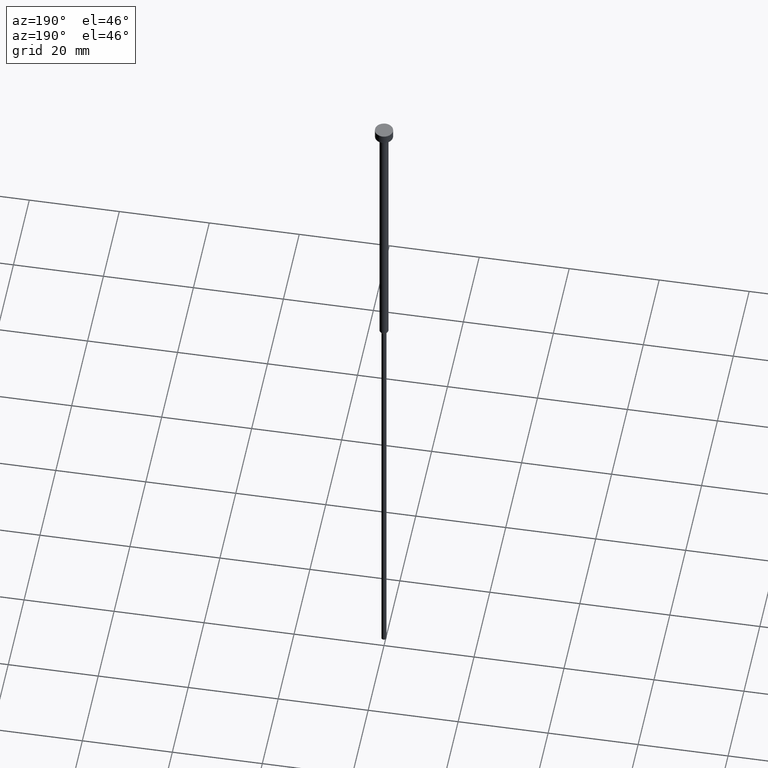
[diagram: clean part render]
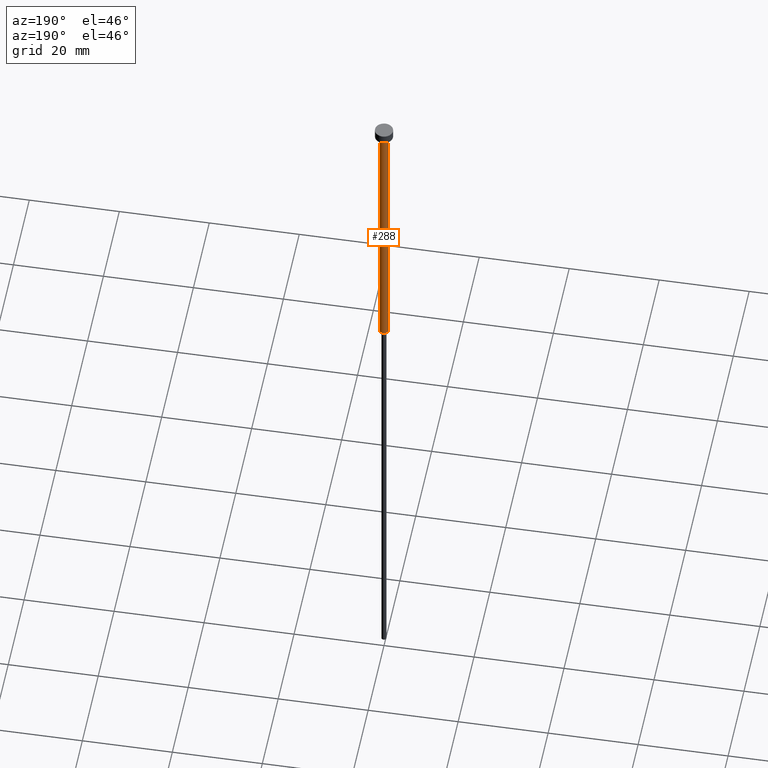
[diagram: same view with one face highlighted and labeled with its STEP entity id]
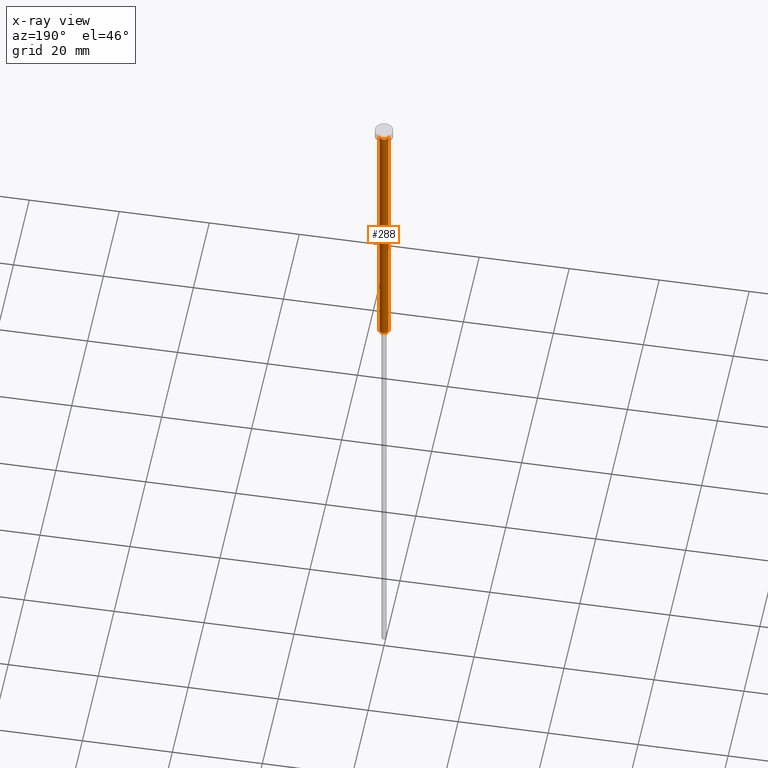
[diagram: x-ray of the same camera — body ghosted, the highlighted face saturated]
A machine part, auxiliary view. The second image highlights one B-rep face of the part: STEP entity #288.
The next image is the same camera in x-ray: the body ghosted, the highlighted face saturated — about 0% of this face is hidden behind the body in this view.
In plain terms, the highlighted cylindrical surface (edge-blend (fillet) strip) has radius 1 mm, axis along (-0, -0, 1).
Its self-contained STEP definition (entity closure, byte-faithful):
#2 = VECTOR ( 'NONE', #203, 1000.000000000000000 ) ;
#3 = CARTESIAN_POINT ( 'NONE',  ( -1.000000000000003331, 1.224646799147357151E-16, 0.000000000000000000 ) ) ;
#6 = DIRECTION ( 'NONE',  ( 1.000000000000000000, 0.000000000000000000, 0.000000000000000000 ) ) ;
#15 = VERTEX_POINT ( 'NONE', #133 ) ;
#17 = CIRCLE ( 'NONE', #322, 1.000000000000003553 ) ;
#27 = DIRECTION ( 'NONE',  ( -0.000000000000000000, -0.000000000000000000, 1.000000000000000000 ) ) ;
#31 = LINE ( 'NONE', #222, #227 ) ;
#32 = CARTESIAN_POINT ( 'NONE',  ( -1.000000000000003553, 1.224646799147357398E-16, -2.000000000000000444 ) ) ;
#46 = ORIENTED_EDGE ( 'NONE', *, *, #325, .T. ) ;
#51 = ORIENTED_EDGE ( 'NONE', *, *, #210, .T. ) ;
#58 = ORIENTED_EDGE ( 'NONE', *, *, #146, .F. ) ;
#61 = VERTEX_POINT ( 'NONE', #109 ) ;
#89 = AXIS2_PLACEMENT_3D ( 'NONE', #144, #255, #6 ) ;
#93 = VERTEX_POINT ( 'NONE', #32 ) ;
#96 = ORIENTED_EDGE ( 'NONE', *, *, #142, .F. ) ;
#109 = CARTESIAN_POINT ( 'NONE',  ( 1.000000000000003109, 0.000000000000000000, -63.00000000000000000 ) ) ;
#121 = CARTESIAN_POINT ( 'NONE',  ( 1.000000000000003553, 0.000000000000000000, -2.000000000000000444 ) ) ;
#122 = LINE ( 'NONE', #3, #2 ) ;
#133 = CARTESIAN_POINT ( 'NONE',  ( -1.000000000000003109, 1.224646799147356905E-16, -63.00000000000000000 ) ) ;
#142 = EDGE_CURVE ( 'NONE', #301, #93, #17, .T. ) ;
#144 = CARTESIAN_POINT ( 'NONE',  ( 0.000000000000000000, 0.000000000000000000, 0.000000000000000000 ) ) ;
#146 = EDGE_CURVE ( 'NONE', #61, #301, #31, .T. ) ;
#155 = EDGE_LOOP ( 'NONE', ( #46, #51, #96, #58 ) ) ;
#171 = CARTESIAN_POINT ( 'NONE',  ( 0.000000000000000000, 0.000000000000000000, -63.00000000000000000 ) ) ;
#196 = CIRCLE ( 'NONE', #304, 1.000000000000003109 ) ;
#203 = DIRECTION ( 'NONE',  ( -0.000000000000000000, -0.000000000000000000, 1.000000000000000000 ) ) ;
#210 = EDGE_CURVE ( 'NONE', #15, #93, #122, .T. ) ;
#222 = CARTESIAN_POINT ( 'NONE',  ( 1.000000000000003331, 0.000000000000000000, 0.000000000000000000 ) ) ;
#227 = VECTOR ( 'NONE', #27, 1000.000000000000000 ) ;
#229 = FACE_OUTER_BOUND ( 'NONE', #155, .T. ) ;
#255 = DIRECTION ( 'NONE',  ( -0.000000000000000000, -0.000000000000000000, 1.000000000000000000 ) ) ;
#275 = CARTESIAN_POINT ( 'NONE',  ( 0.000000000000000000, 0.000000000000000000, -2.000000000000000444 ) ) ;
#280 = DIRECTION ( 'NONE',  ( -0.000000000000000000, -0.000000000000000000, 1.000000000000000000 ) ) ;
#288 = ADVANCED_FACE ( 'NONE', ( #229 ), #312, .T. ) ;
#301 = VERTEX_POINT ( 'NONE', #121 ) ;
#303 = DIRECTION ( 'NONE',  ( 1.000000000000000000, 0.000000000000000000, 0.000000000000000000 ) ) ;
#304 = AXIS2_PLACEMENT_3D ( 'NONE', #171, #280, #313 ) ;
#312 = CYLINDRICAL_SURFACE ( 'NONE', #89, 1.000000000000003331 ) ;
#313 = DIRECTION ( 'NONE',  ( 1.000000000000000000, 0.000000000000000000, 0.000000000000000000 ) ) ;
#322 = AXIS2_PLACEMENT_3D ( 'NONE', #275, #327, #303 ) ;
#325 = EDGE_CURVE ( 'NONE', #61, #15, #196, .T. ) ;
#327 = DIRECTION ( 'NONE',  ( -0.000000000000000000, -0.000000000000000000, 1.000000000000000000 ) ) ;